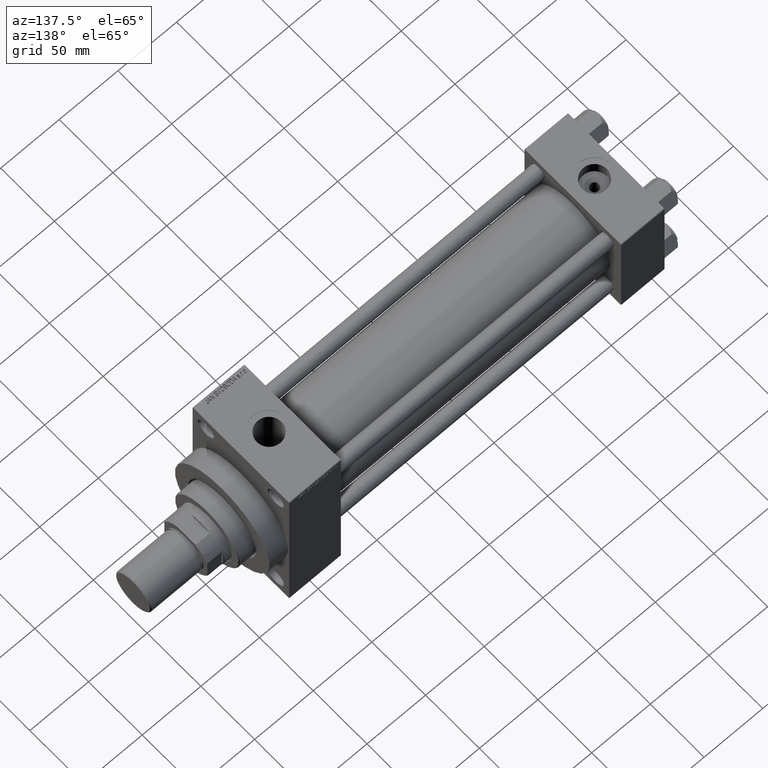
[diagram: clean part render]
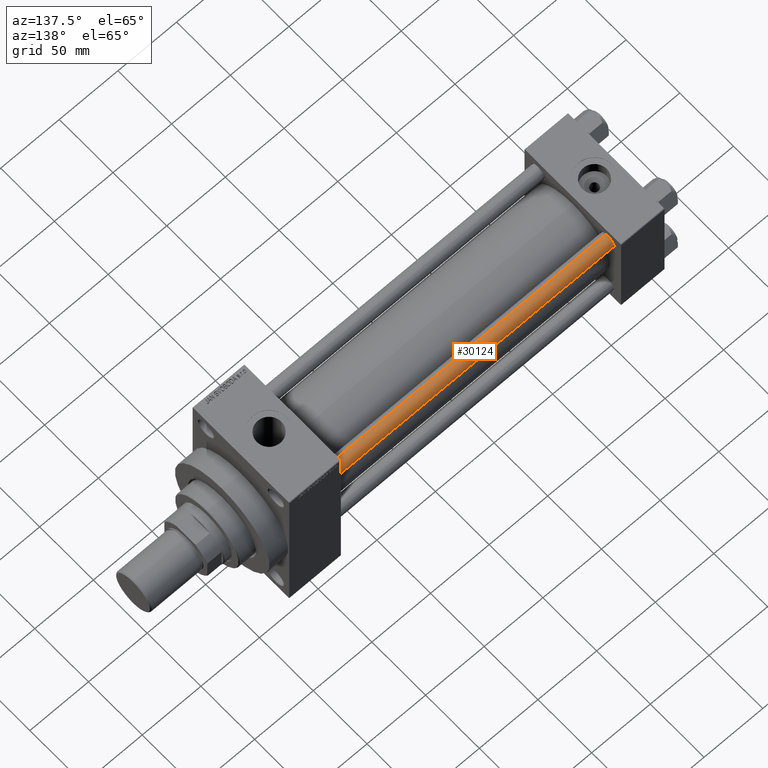
[diagram: same view with one face highlighted and labeled with its STEP entity id]
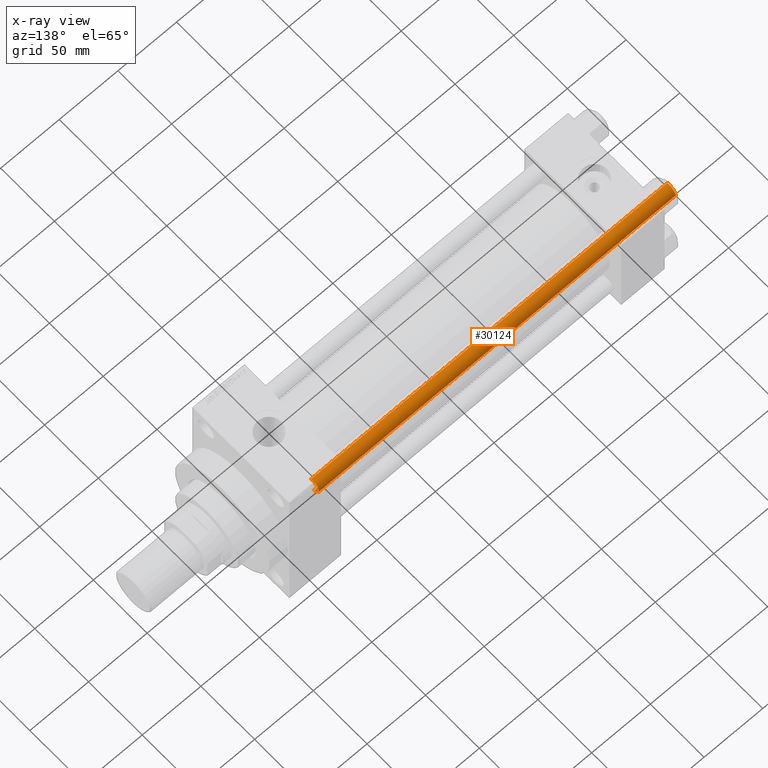
[diagram: x-ray of the same camera — body ghosted, the highlighted face saturated]
A machine part, auxiliary view. The second image highlights one B-rep face of the part: STEP entity #30124.
The next image is the same camera in x-ray: the body ghosted, the highlighted face saturated — about 0% of this face is hidden behind the body in this view.
In plain terms, the highlighted cylindrical surface (edge-blend (fillet) strip) has radius 6 mm, axis along (-1, -0, 0).
Its self-contained STEP definition (entity closure, byte-faithful):
#1525 = CARTESIAN_POINT ( 'NONE',  ( 6.000000000000000888, 7.347880794884120722E-16, 0.5000000000000004441 ) ) ;
#1803 = EDGE_LOOP ( 'NONE', ( #37936, #28643, #38319, #3506 ) ) ;
#2086 = DIRECTION ( 'NONE',  ( -0.000000000000000000, -0.000000000000000000, -1.000000000000000000 ) ) ;
#3432 = CARTESIAN_POINT ( 'NONE',  ( 0.000000000000000000, 0.000000000000000000, 305.0000000000000000 ) ) ;
#3506 = ORIENTED_EDGE ( 'NONE', *, *, #11345, .F. ) ;
#4582 = EDGE_CURVE ( 'NONE', #21877, #36990, #42078, .T. ) ;
#4631 = AXIS2_PLACEMENT_3D ( 'NONE', #3432, #39591, #6813 ) ;
#5458 = LINE ( 'NONE', #34144, #13306 ) ;
#6649 = CARTESIAN_POINT ( 'NONE',  ( -6.000000000000000888, 0.000000000000000000, 0.5000000000000004441 ) ) ;
#6813 = DIRECTION ( 'NONE',  ( -1.000000000000000000, 0.000000000000000000, 0.000000000000000000 ) ) ;
#7219 = EDGE_CURVE ( 'NONE', #18637, #15247, #7501, .T. ) ;
#7501 = CIRCLE ( 'NONE', #47496, 6.000000000000000888 ) ;
#9260 = CARTESIAN_POINT ( 'NONE',  ( -6.000000000000000888, 0.000000000000000000, 305.0000000000000000 ) ) ;
#11345 = EDGE_CURVE ( 'NONE', #21877, #15247, #30711, .T. ) ;
#13306 = VECTOR ( 'NONE', #2086, 1000.000000000000000 ) ;
#14238 = DIRECTION ( 'NONE',  ( -0.000000000000000000, -0.000000000000000000, 1.000000000000000000 ) ) ;
#14339 = AXIS2_PLACEMENT_3D ( 'NONE', #38618, #20542, #32085 ) ;
#15229 = EDGE_CURVE ( 'NONE', #36990, #18637, #5458, .T. ) ;
#15247 = VERTEX_POINT ( 'NONE', #6649 ) ;
#18106 = DIRECTION ( 'NONE',  ( 1.000000000000000000, 0.000000000000000000, 0.000000000000000000 ) ) ;
#18637 = VERTEX_POINT ( 'NONE', #1525 ) ;
#20542 = DIRECTION ( 'NONE',  ( 0.000000000000000000, 0.000000000000000000, -1.000000000000000000 ) ) ;
#21877 = VERTEX_POINT ( 'NONE', #32924 ) ;
#25319 = CARTESIAN_POINT ( 'NONE',  ( 0.000000000000000000, 0.000000000000000000, 0.5000000000000004441 ) ) ;
#28643 = ORIENTED_EDGE ( 'NONE', *, *, #15229, .T. ) ;
#30124 = ADVANCED_FACE ( 'NONE', ( #43439 ), #36204, .T. ) ;
#30711 = LINE ( 'NONE', #9260, #42253 ) ;
#32085 = DIRECTION ( 'NONE',  ( 1.000000000000000000, 0.000000000000000000, 0.000000000000000000 ) ) ;
#32924 = CARTESIAN_POINT ( 'NONE',  ( -6.000000000000000888, 0.000000000000000000, 304.5000000000000000 ) ) ;
#34144 = CARTESIAN_POINT ( 'NONE',  ( 6.000000000000000888, 7.347880794884120722E-16, 305.0000000000000000 ) ) ;
#35046 = DIRECTION ( 'NONE',  ( -0.000000000000000000, -0.000000000000000000, -1.000000000000000000 ) ) ;
#36204 = CYLINDRICAL_SURFACE ( 'NONE', #4631, 6.000000000000000888 ) ;
#36561 = CARTESIAN_POINT ( 'NONE',  ( 6.000000000000000888, 7.347880794884120722E-16, 304.5000000000000000 ) ) ;
#36990 = VERTEX_POINT ( 'NONE', #36561 ) ;
#37936 = ORIENTED_EDGE ( 'NONE', *, *, #4582, .T. ) ;
#38319 = ORIENTED_EDGE ( 'NONE', *, *, #7219, .T. ) ;
#38618 = CARTESIAN_POINT ( 'NONE',  ( 0.000000000000000000, 0.000000000000000000, 304.5000000000000000 ) ) ;
#39591 = DIRECTION ( 'NONE',  ( -0.000000000000000000, -0.000000000000000000, -1.000000000000000000 ) ) ;
#42078 = CIRCLE ( 'NONE', #14339, 6.000000000000000888 ) ;
#42253 = VECTOR ( 'NONE', #35046, 1000.000000000000000 ) ;
#43439 = FACE_OUTER_BOUND ( 'NONE', #1803, .T. ) ;
#47496 = AXIS2_PLACEMENT_3D ( 'NONE', #25319, #14238, #18106 ) ;